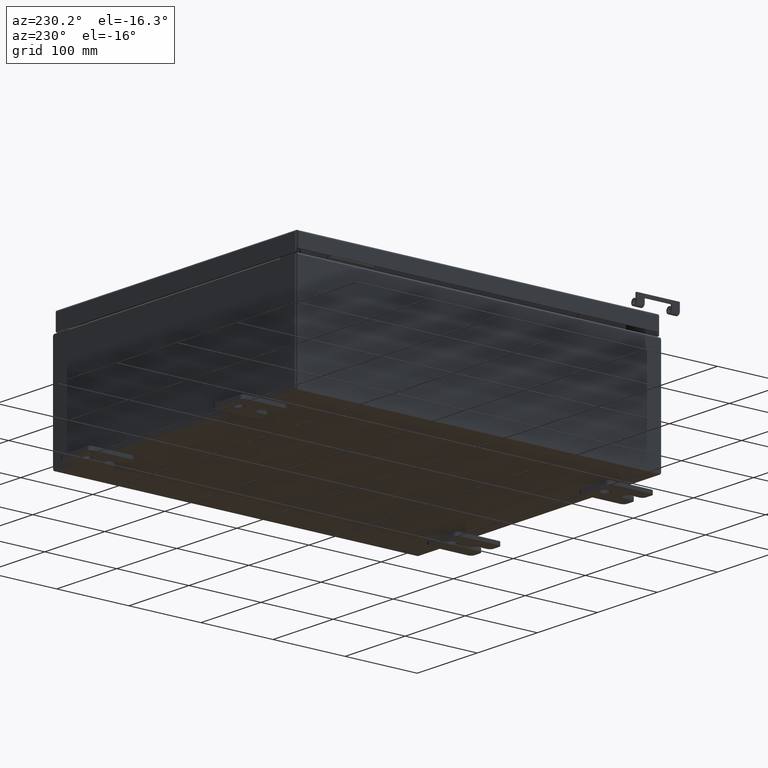
[diagram: clean part render]
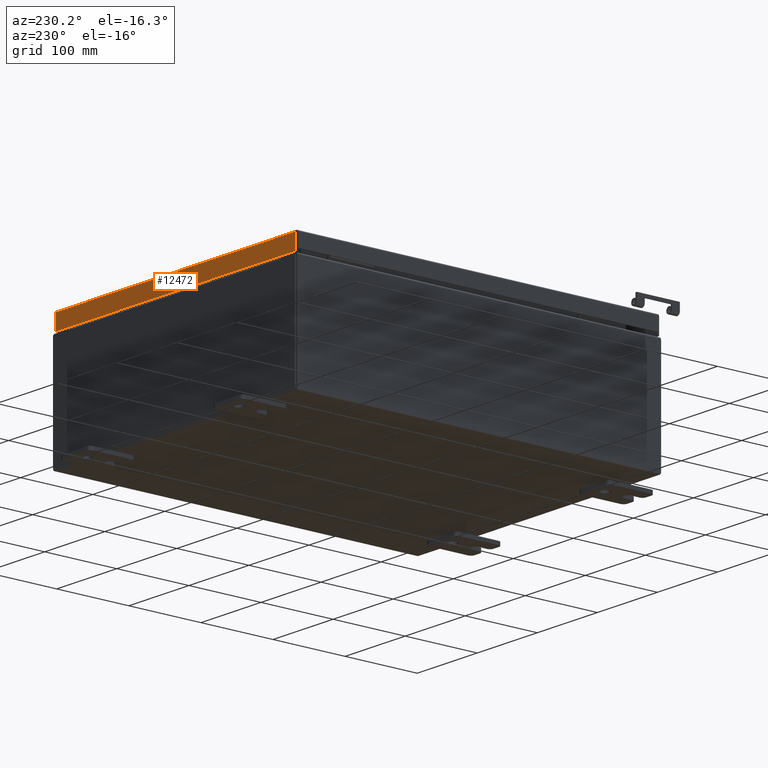
[diagram: same view with one face highlighted and labeled with its STEP entity id]
A machine part, auxiliary view. The second image highlights one B-rep face of the part: STEP entity #12472.
In plain terms, the highlighted planar face has unit normal (0, -1, -0).
Its self-contained STEP definition (entity closure, byte-faithful):
#2170 = CARTESIAN_POINT ( 'NONE',  ( -3.248006752358563700E-030, 9.937499999999998200, 2.542673665674256200E-014 ) ) ;
#3073 = VERTEX_POINT ( 'NONE', #15268 ) ;
#3904 = CARTESIAN_POINT ( 'NONE',  ( -7.848657864376269400, 9.937499999999998200, -0.07469999999999980800 ) ) ;
#11965 = DIRECTION ( 'NONE',  ( 0.0000000000000000000, 2.532419924601860200E-015, -1.000000000000000000 ) ) ;
#12472 = ADVANCED_FACE ( 'NONE', ( #32361 ), #36265, .F. ) ;
#13579 = ORIENTED_EDGE ( 'NONE', *, *, #14895, .T. ) ;
#13884 = ORIENTED_EDGE ( 'NONE', *, *, #41752, .F. ) ;
#14174 = DIRECTION ( 'NONE',  ( -1.000000000000000000, -3.268434467782203500E-031, -8.183254531802216200E-046 ) ) ;
#14895 = EDGE_CURVE ( 'NONE', #3073, #47356, #44408, .T. ) ;
#15268 = CARTESIAN_POINT ( 'NONE',  ( 7.848657864376269400, 9.937499999999998200, -0.08770000000000008300 ) ) ;
#15454 = CARTESIAN_POINT ( 'NONE',  ( 7.848657864376269400, 9.937500000000000000, -0.9376999999999996400 ) ) ;
#20108 = VECTOR ( 'NONE', #14174, 39.37007874015748100 ) ;
#20346 = AXIS2_PLACEMENT_3D ( 'NONE', #2170, #41160, #11965 ) ;
#23534 = LINE ( 'NONE', #3904, #36506 ) ;
#23567 = CARTESIAN_POINT ( 'NONE',  ( -7.848657864376269400, 9.937500000000000000, -0.9377000000000018700 ) ) ;
#26517 = EDGE_LOOP ( 'NONE', ( #13884, #13579, #33828, #27755 ) ) ;
#27755 = ORIENTED_EDGE ( 'NONE', *, *, #27851, .F. ) ;
#27851 = EDGE_CURVE ( 'NONE', #46451, #59783, #23534, .T. ) ;
#28667 = CARTESIAN_POINT ( 'NONE',  ( -7.937500000000000000, 9.937499999999998200, -0.08770000000000008300 ) ) ;
#28801 = CARTESIAN_POINT ( 'NONE',  ( -7.848657864376269400, 9.937499999999998200, -0.08770000000000008300 ) ) ;
#31229 = CARTESIAN_POINT ( 'NONE',  ( -7.937500000000000000, 9.937500000000000000, -0.9377000000000018700 ) ) ;
#31451 = VECTOR ( 'NONE', #57739, 39.37007874015748100 ) ;
#32361 = FACE_OUTER_BOUND ( 'NONE', #26517, .T. ) ;
#33828 = ORIENTED_EDGE ( 'NONE', *, *, #55415, .F. ) ;
#36265 = PLANE ( 'NONE',  #20346 ) ;
#36350 = DIRECTION ( 'NONE',  ( 1.000000000000000000, 4.379057701015054300E-047, 1.290636847400439300E-016 ) ) ;
#36506 = VECTOR ( 'NONE', #42896, 39.37007874015748100 ) ;
#41160 = DIRECTION ( 'NONE',  ( 3.268434467782203000E-031, -1.000000000000000000, -2.532419924601860200E-015 ) ) ;
#41752 = EDGE_CURVE ( 'NONE', #3073, #46451, #54447, .T. ) ;
#42896 = DIRECTION ( 'NONE',  ( -0.0000000000000000000, 2.532419924601860200E-015, -1.000000000000000000 ) ) ;
#44408 = LINE ( 'NONE', #56286, #31451 ) ;
#46451 = VERTEX_POINT ( 'NONE', #28801 ) ;
#46680 = VECTOR ( 'NONE', #36350, 39.37007874015748100 ) ;
#47356 = VERTEX_POINT ( 'NONE', #15454 ) ;
#48237 = LINE ( 'NONE', #31229, #46680 ) ;
#54447 = LINE ( 'NONE', #28667, #20108 ) ;
#55415 = EDGE_CURVE ( 'NONE', #59783, #47356, #48237, .T. ) ;
#56286 = CARTESIAN_POINT ( 'NONE',  ( 7.848657864376269400, 9.937499999999998200, 2.542673665674256200E-014 ) ) ;
#57739 = DIRECTION ( 'NONE',  ( 0.0000000000000000000, 2.532419924601860200E-015, -1.000000000000000000 ) ) ;
#59783 = VERTEX_POINT ( 'NONE', #23567 ) ;